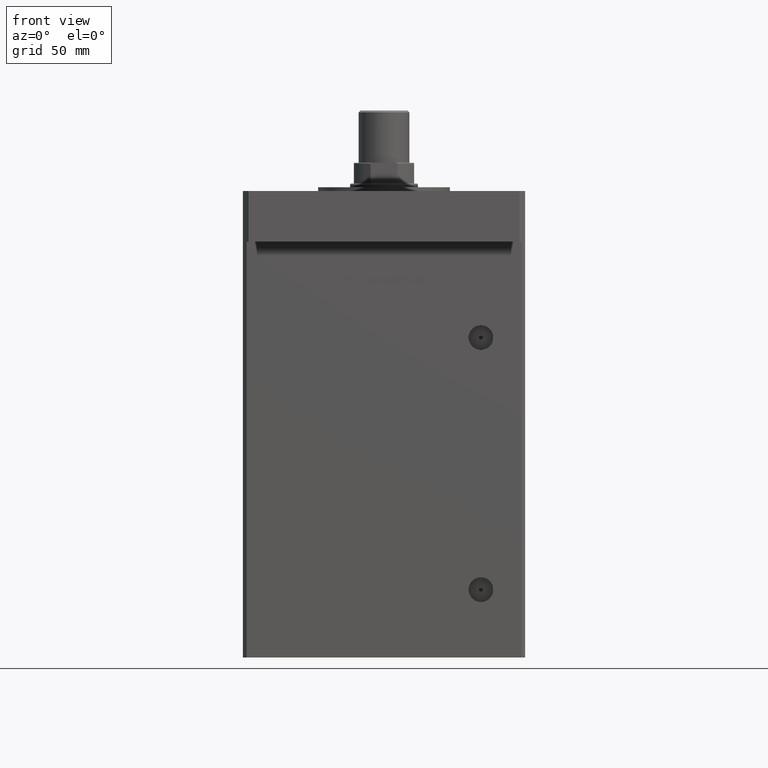
[diagram: clean part render]
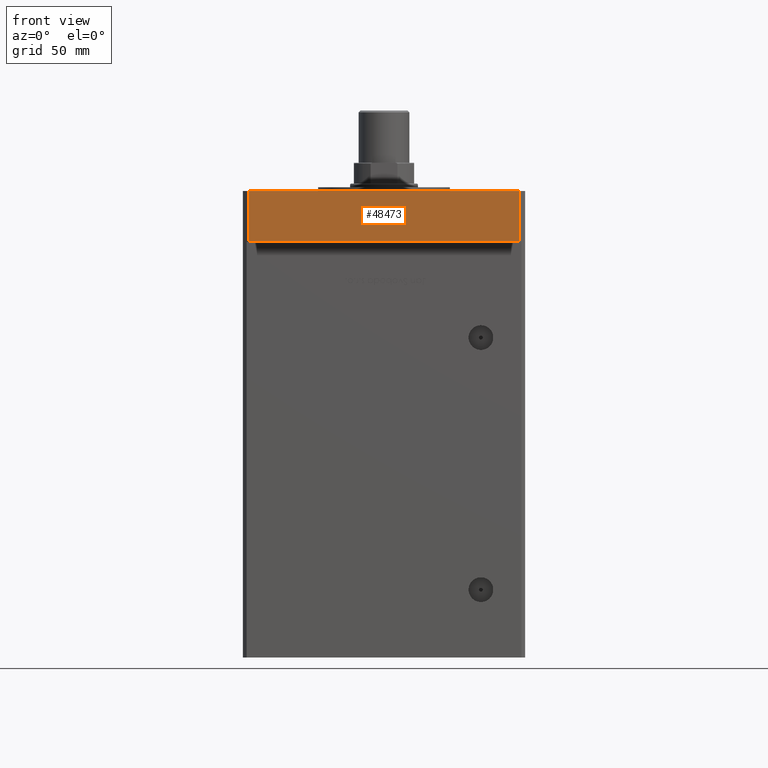
[diagram: same view with one face highlighted and labeled with its STEP entity id]
A machine part, front view. The second image highlights one B-rep face of the part: STEP entity #48473.
In plain terms, the highlighted planar face has unit normal (-0, 1, 0).
Its self-contained STEP definition (entity closure, byte-faithful):
#1218 = CARTESIAN_POINT ( 'NONE',  ( 72.00000000000001421, -104.9999999999999005, 27.00000000000000000 ) ) ;
#3366 = ORIENTED_EDGE ( 'NONE', *, *, #39693, .T. ) ;
#4540 = DIRECTION ( 'NONE',  ( 1.000000000000000000, 7.709882115452476194E-16, 0.000000000000000000 ) ) ;
#5156 = DIRECTION ( 'NONE',  ( -1.000000000000000000, -7.709882115452476194E-16, 0.000000000000000000 ) ) ;
#5955 = VECTOR ( 'NONE', #42680, 1000.000000000000000 ) ;
#9851 = VERTEX_POINT ( 'NONE', #33098 ) ;
#12494 = EDGE_CURVE ( 'NONE', #44326, #9851, #42803, .T. ) ;
#13730 = PLANE ( 'NONE',  #18698 ) ;
#13963 = DIRECTION ( 'NONE',  ( -0.000000000000000000, -0.000000000000000000, -1.000000000000000000 ) ) ;
#18152 = FACE_OUTER_BOUND ( 'NONE', #36756, .T. ) ;
#18698 = AXIS2_PLACEMENT_3D ( 'NONE', #34771, #38679, #5156 ) ;
#20544 = ORIENTED_EDGE ( 'NONE', *, *, #12494, .T. ) ;
#21418 = CARTESIAN_POINT ( 'NONE',  ( -71.99999999999998579, -105.0000000000000142, 0.000000000000000000 ) ) ;
#21898 = EDGE_CURVE ( 'NONE', #44326, #42500, #26846, .T. ) ;
#22705 = DIRECTION ( 'NONE',  ( 1.000000000000000000, 7.709882115452476194E-16, 0.000000000000000000 ) ) ;
#23979 = CARTESIAN_POINT ( 'NONE',  ( 72.00000000000001421, -104.9999999999999005, 0.000000000000000000 ) ) ;
#25903 = VERTEX_POINT ( 'NONE', #23979 ) ;
#26719 = EDGE_CURVE ( 'NONE', #42500, #25903, #38791, .T. ) ;
#26846 = LINE ( 'NONE', #35729, #52786 ) ;
#33098 = CARTESIAN_POINT ( 'NONE',  ( -71.99999999999998579, -105.0000000000000142, 0.000000000000000000 ) ) ;
#34326 = VECTOR ( 'NONE', #4540, 1000.000000000000000 ) ;
#34608 = CARTESIAN_POINT ( 'NONE',  ( 72.00000000000001421, -104.9999999999999005, 27.00000000000000000 ) ) ;
#34771 = CARTESIAN_POINT ( 'NONE',  ( -71.99999999999998579, -105.0000000000000142, 27.00000000000000000 ) ) ;
#35729 = CARTESIAN_POINT ( 'NONE',  ( -71.99999999999998579, -105.0000000000000142, 27.00000000000000000 ) ) ;
#36756 = EDGE_LOOP ( 'NONE', ( #3366, #44218, #39443, #20544 ) ) ;
#38679 = DIRECTION ( 'NONE',  ( -7.709882115452476194E-16, 1.000000000000000000, 0.000000000000000000 ) ) ;
#38791 = LINE ( 'NONE', #34608, #5955 ) ;
#39443 = ORIENTED_EDGE ( 'NONE', *, *, #21898, .F. ) ;
#39693 = EDGE_CURVE ( 'NONE', #9851, #25903, #50755, .T. ) ;
#42500 = VERTEX_POINT ( 'NONE', #1218 ) ;
#42680 = DIRECTION ( 'NONE',  ( -0.000000000000000000, -0.000000000000000000, -1.000000000000000000 ) ) ;
#42803 = LINE ( 'NONE', #51067, #43694 ) ;
#43694 = VECTOR ( 'NONE', #13963, 1000.000000000000000 ) ;
#44218 = ORIENTED_EDGE ( 'NONE', *, *, #26719, .F. ) ;
#44326 = VERTEX_POINT ( 'NONE', #46734 ) ;
#46734 = CARTESIAN_POINT ( 'NONE',  ( -71.99999999999998579, -105.0000000000000142, 27.00000000000000000 ) ) ;
#48473 = ADVANCED_FACE ( 'NONE', ( #18152 ), #13730, .F. ) ;
#50755 = LINE ( 'NONE', #21418, #34326 ) ;
#51067 = CARTESIAN_POINT ( 'NONE',  ( -71.99999999999998579, -105.0000000000000142, 27.00000000000000000 ) ) ;
#52786 = VECTOR ( 'NONE', #22705, 1000.000000000000000 ) ;